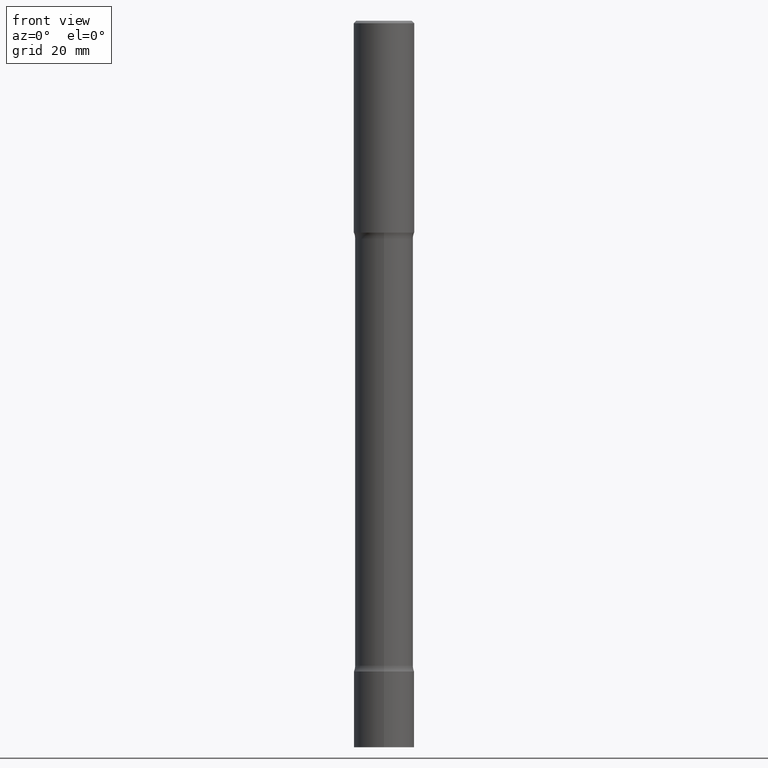
[diagram: clean part render]
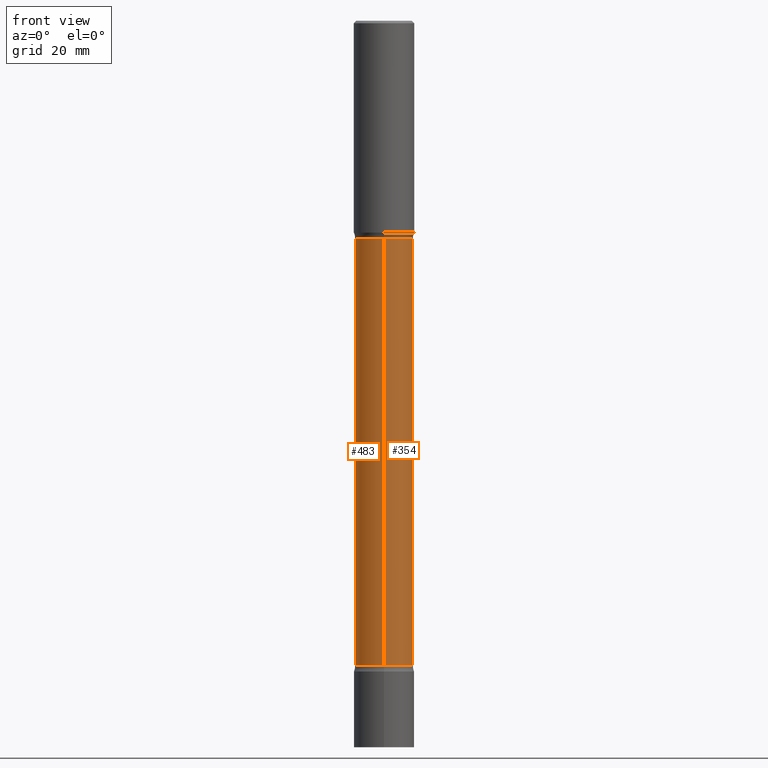
[diagram: same view with one multi-face feature highlighted, each face labeled with its STEP entity id]
A machine part, front view. The highlighted faces form ONE feature: a constant-radius fillet chain: 2 tangent blend faces with common blend radius 6.096 mm. The faces share edges in the B-rep.
Their STEP definitions:
[1] entity #354 (Cylinder):
#8 = VECTOR ( 'NONE', #242, 39.37007874015748143 ) ;
#11 = DIRECTION ( 'NONE',  ( 2.869131418733858513E-29, -2.884772364294969473E-15, -1.000000000000000000 ) ) ;
#19 = VERTEX_POINT ( 'NONE', #76 ) ;
#23 = CYLINDRICAL_SURFACE ( 'NONE', #469, 0.2400000000000014622 ) ;
#41 = EDGE_LOOP ( 'NONE', ( #339, #62, #364, #480 ) ) ;
#62 = ORIENTED_EDGE ( 'NONE', *, *, #183, .T. ) ;
#76 = CARTESIAN_POINT ( 'NONE',  ( -1.680822009453898416E-15, -0.2400000000000195588, -5.326010205144336318 ) ) ;
#77 = AXIS2_PLACEMENT_3D ( 'NONE', #128, #278, #79 ) ;
#79 = DIRECTION ( 'NONE',  ( 6.982962677686265922E-15, 1.000000000000000000, -4.553079989440420159E-15 ) ) ;
#86 = VERTEX_POINT ( 'NONE', #306 ) ;
#99 = CIRCLE ( 'NONE', #77, 0.2400000000000009626 ) ;
#128 = CARTESIAN_POINT ( 'NONE',  ( 1.300221698611852248E-28, -1.862770727464941642E-14, -5.326010205144338094 ) ) ;
#138 = CARTESIAN_POINT ( 'NONE',  ( 1.675911042644863518E-15, 0.2399999999999809230, -6.000000000000002665 ) ) ;
#164 = AXIS2_PLACEMENT_3D ( 'NONE', #231, #321, #481 ) ;
#168 = DIRECTION ( 'NONE',  ( 6.982962677686265922E-15, 1.000000000000000000, -4.553079989440410693E-15 ) ) ;
#179 = VECTOR ( 'NONE', #11, 39.37007874015748143 ) ;
#183 = EDGE_CURVE ( 'NONE', #499, #19, #363, .T. ) ;
#212 = EDGE_CURVE ( 'NONE', #343, #499, #218, .T. ) ;
#218 = CIRCLE ( 'NONE', #164, 0.2400000000000020173 ) ;
#220 = EDGE_CURVE ( 'NONE', #86, #19, #99, .T. ) ;
#231 = CARTESIAN_POINT ( 'NONE',  ( 2.882731912443707579E-29, -8.453056266744347399E-15, -1.798989794855665014 ) ) ;
#237 = CARTESIAN_POINT ( 'NONE',  ( -1.646519519465027931E-15, -0.2400000000000220290, -6.000000000000000888 ) ) ;
#242 = DIRECTION ( 'NONE',  ( 2.869131418733858513E-29, -2.884772364294969473E-15, -1.000000000000000000 ) ) ;
#251 = CARTESIAN_POINT ( 'NONE',  ( 1.493598228244489726E-28, -2.057201440866586855E-14, -6.000000000000001776 ) ) ;
#278 = DIRECTION ( 'NONE',  ( 2.869131418733858513E-29, -2.884772364294969473E-15, -1.000000000000000000 ) ) ;
#289 = FACE_OUTER_BOUND ( 'NONE', #41, .T. ) ;
#295 = CARTESIAN_POINT ( 'NONE',  ( -1.680822009454010631E-15, -0.2400000000000104827, -1.798989794855664126 ) ) ;
#306 = CARTESIAN_POINT ( 'NONE',  ( 1.675911042644840444E-15, 0.2399999999999823386, -5.326010205144338983 ) ) ;
#321 = DIRECTION ( 'NONE',  ( 2.869131418733858513E-29, -2.884772364294969473E-15, -1.000000000000000000 ) ) ;
#329 = DIRECTION ( 'NONE',  ( 2.869131418733858513E-29, -2.884772364294969473E-15, -1.000000000000000000 ) ) ;
#330 = EDGE_CURVE ( 'NONE', #343, #86, #489, .T. ) ;
#339 = ORIENTED_EDGE ( 'NONE', *, *, #212, .T. ) ;
#343 = VERTEX_POINT ( 'NONE', #404 ) ;
#354 = ADVANCED_FACE ( 'NONE', ( #289 ), #23, .T. ) ;
#363 = LINE ( 'NONE', #237, #179 ) ;
#364 = ORIENTED_EDGE ( 'NONE', *, *, #220, .F. ) ;
#404 = CARTESIAN_POINT ( 'NONE',  ( 1.675911042644746767E-15, 0.2399999999999935518, -1.798989794855665902 ) ) ;
#469 = AXIS2_PLACEMENT_3D ( 'NONE', #251, #329, #168 ) ;
#480 = ORIENTED_EDGE ( 'NONE', *, *, #330, .F. ) ;
#481 = DIRECTION ( 'NONE',  ( 6.982962677686265922E-15, 1.000000000000000000, -3.414809992080300328E-15 ) ) ;
#489 = LINE ( 'NONE', #138, #8 ) ;
#499 = VERTEX_POINT ( 'NONE', #295 ) ;
[2] entity #483 (Cylinder):
#8 = VECTOR ( 'NONE', #242, 39.37007874015748143 ) ;
#9 = EDGE_LOOP ( 'NONE', ( #315, #24, #418, #357 ) ) ;
#11 = DIRECTION ( 'NONE',  ( 2.869131418733858513E-29, -2.884772364294969473E-15, -1.000000000000000000 ) ) ;
#19 = VERTEX_POINT ( 'NONE', #76 ) ;
#24 = ORIENTED_EDGE ( 'NONE', *, *, #296, .T. ) ;
#54 = DIRECTION ( 'NONE',  ( 6.982962677686265922E-15, 1.000000000000000000, -3.414809992080300328E-15 ) ) ;
#56 = AXIS2_PLACEMENT_3D ( 'NONE', #144, #170, #214 ) ;
#76 = CARTESIAN_POINT ( 'NONE',  ( -1.680822009453898416E-15, -0.2400000000000195588, -5.326010205144336318 ) ) ;
#83 = DIRECTION ( 'NONE',  ( 2.869131418733858513E-29, -2.884772364294969473E-15, -1.000000000000000000 ) ) ;
#86 = VERTEX_POINT ( 'NONE', #306 ) ;
#130 = CARTESIAN_POINT ( 'NONE',  ( 1.493598228244489726E-28, -2.057201440866586855E-14, -6.000000000000001776 ) ) ;
#138 = CARTESIAN_POINT ( 'NONE',  ( 1.675911042644863518E-15, 0.2399999999999809230, -6.000000000000002665 ) ) ;
#144 = CARTESIAN_POINT ( 'NONE',  ( 1.300221698611852248E-28, -1.862770727464941642E-14, -5.326010205144338094 ) ) ;
#170 = DIRECTION ( 'NONE',  ( 2.869131418733858513E-29, -2.884772364294969473E-15, -1.000000000000000000 ) ) ;
#179 = VECTOR ( 'NONE', #11, 39.37007874015748143 ) ;
#183 = EDGE_CURVE ( 'NONE', #499, #19, #363, .T. ) ;
#197 = CARTESIAN_POINT ( 'NONE',  ( 2.882731912443707579E-29, -8.453056266744347399E-15, -1.798989794855665014 ) ) ;
#214 = DIRECTION ( 'NONE',  ( 6.982962677686265922E-15, 1.000000000000000000, -4.553079989440420159E-15 ) ) ;
#237 = CARTESIAN_POINT ( 'NONE',  ( -1.646519519465027931E-15, -0.2400000000000220290, -6.000000000000000888 ) ) ;
#242 = DIRECTION ( 'NONE',  ( 2.869131418733858513E-29, -2.884772364294969473E-15, -1.000000000000000000 ) ) ;
#266 = CIRCLE ( 'NONE', #316, 0.2400000000000020173 ) ;
#295 = CARTESIAN_POINT ( 'NONE',  ( -1.680822009454010631E-15, -0.2400000000000104827, -1.798989794855664126 ) ) ;
#296 = EDGE_CURVE ( 'NONE', #499, #343, #266, .T. ) ;
#306 = CARTESIAN_POINT ( 'NONE',  ( 1.675911042644840444E-15, 0.2399999999999823386, -5.326010205144338983 ) ) ;
#308 = AXIS2_PLACEMENT_3D ( 'NONE', #130, #446, #487 ) ;
#315 = ORIENTED_EDGE ( 'NONE', *, *, #183, .F. ) ;
#316 = AXIS2_PLACEMENT_3D ( 'NONE', #197, #83, #54 ) ;
#325 = CYLINDRICAL_SURFACE ( 'NONE', #308, 0.2400000000000014622 ) ;
#326 = CIRCLE ( 'NONE', #56, 0.2400000000000009626 ) ;
#330 = EDGE_CURVE ( 'NONE', #343, #86, #489, .T. ) ;
#343 = VERTEX_POINT ( 'NONE', #404 ) ;
#357 = ORIENTED_EDGE ( 'NONE', *, *, #372, .F. ) ;
#363 = LINE ( 'NONE', #237, #179 ) ;
#372 = EDGE_CURVE ( 'NONE', #19, #86, #326, .T. ) ;
#404 = CARTESIAN_POINT ( 'NONE',  ( 1.675911042644746767E-15, 0.2399999999999935518, -1.798989794855665902 ) ) ;
#418 = ORIENTED_EDGE ( 'NONE', *, *, #330, .T. ) ;
#446 = DIRECTION ( 'NONE',  ( 2.869131418733858513E-29, -2.884772364294969473E-15, -1.000000000000000000 ) ) ;
#482 = FACE_OUTER_BOUND ( 'NONE', #9, .T. ) ;
#483 = ADVANCED_FACE ( 'NONE', ( #482 ), #325, .T. ) ;
#487 = DIRECTION ( 'NONE',  ( 6.982962677686265922E-15, 1.000000000000000000, -4.553079989440410693E-15 ) ) ;
#489 = LINE ( 'NONE', #138, #8 ) ;
#499 = VERTEX_POINT ( 'NONE', #295 ) ;